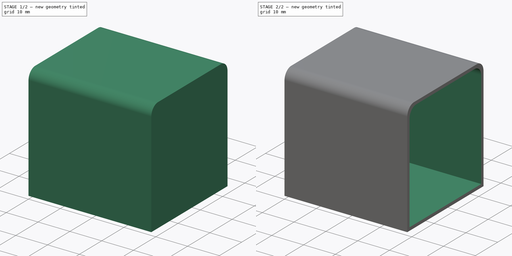
[diagram: build sequence overview — one tinted view per stage of 2, left to right]
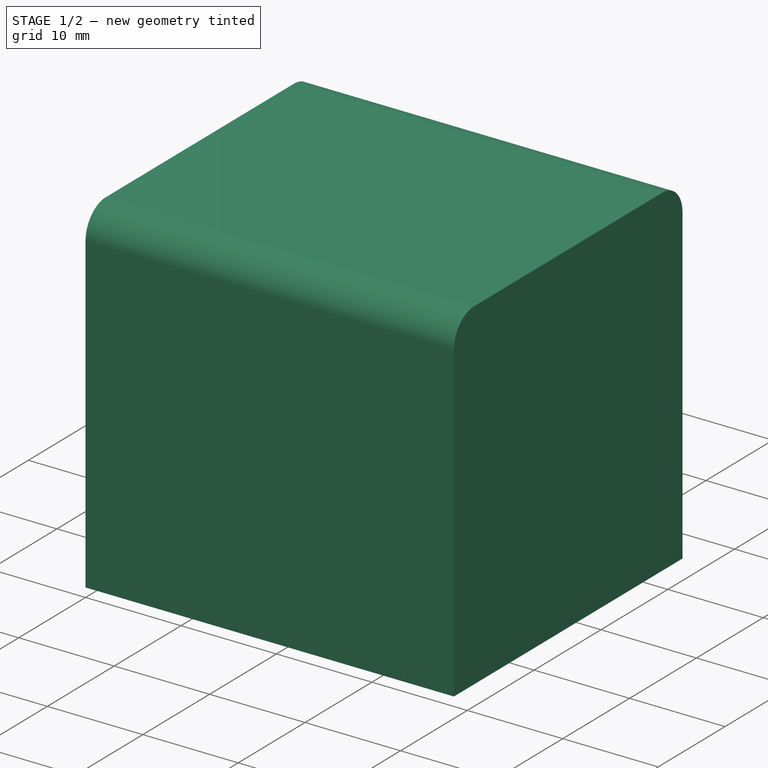
[diagram: stage 1 of 2 — iso view after this stage's code; geometry added in this stage tinted green]
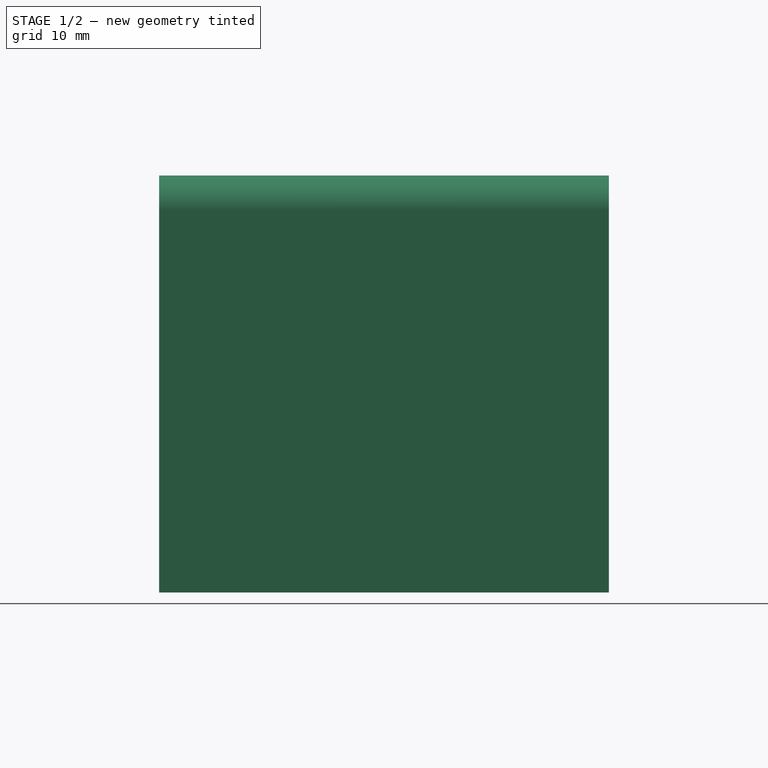
[diagram: stage 1 of 2 — front view after this stage's code; geometry added in this stage tinted green]
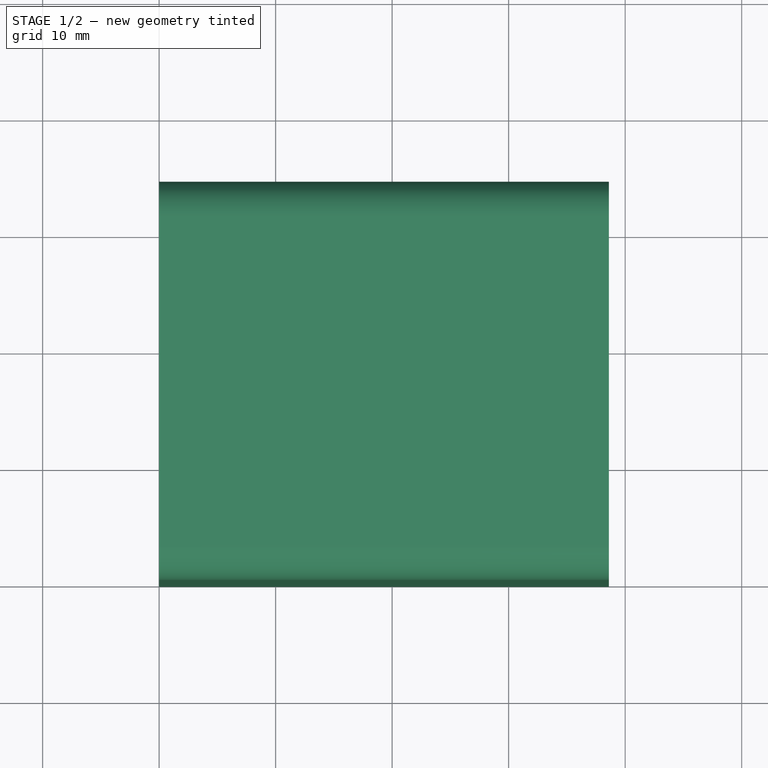
[diagram: stage 1 of 2 — top view after this stage's code; geometry added in this stage tinted green]
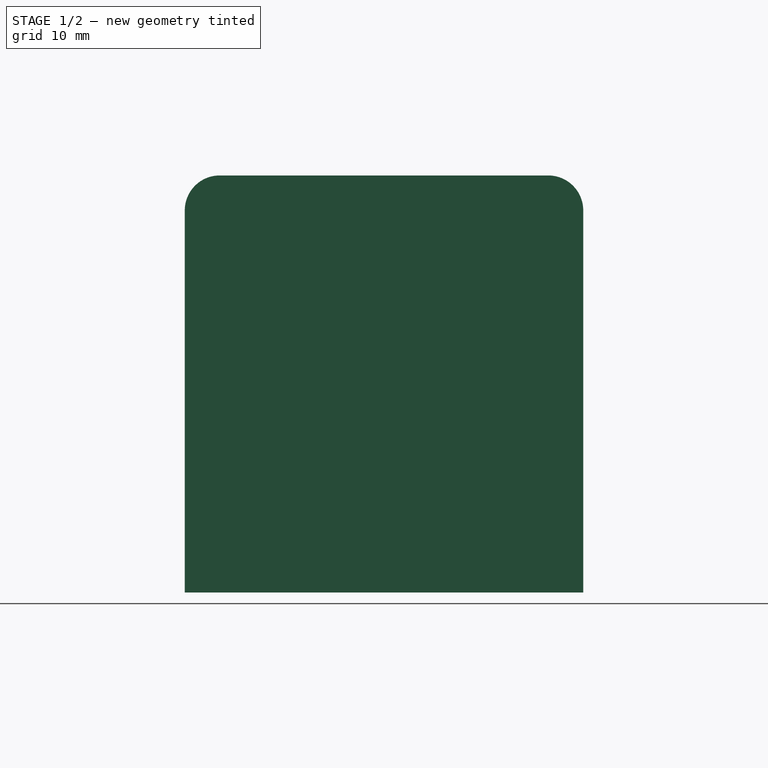
[diagram: stage 1 of 2 — right view after this stage's code; geometry added in this stage tinted green]
FCSTD DOCUMENT  (FreeCAD 0.19R24291 (Git))
Label: NewCase (copy)
License: All rights reserved
LicenseURL: http://en.wikipedia.org/wiki/All_rights_reserved
objects: Sketcher::SketchObject×4, PartDesign::Pocket×3, PartDesign::Pad×1, PartDesign::Body×1
note: 13 computed .brp shape members not serialized (recipe doc carries the construction recipe); baked Part::Feature solids carry a one-line shape summary decoded from their .brp

FEATURE [Sketcher::SketchObject] Sketch
  FullyConstrained = false
  MapMode = 5
  Placement = pos=(0,0,0) rot=(0.57735,0.57735,0.57735;2.0944rad)
  Support = -> [YZ_Plane]
  sketch-geometry (7):
    g0: LineSegment StartX=0 StartY=0 StartZ=0 EndX=34.2 EndY=0 EndZ=0
    g1: LineSegment StartX=34.2 StartY=0 StartZ=0 EndX=34.2 EndY=32.8 EndZ=0
    g2: LineSegment StartX=31.2 StartY=35.8 StartZ=0 EndX=3 EndY=35.8 EndZ=0
    g3: LineSegment StartX=0 StartY=32.8 StartZ=0 EndX=0 EndY=0 EndZ=0
    g4: GeomPoint X=28.1469 Y=35.8 Z=0
    g5: ArcOfCircle CenterX=31.2 CenterY=32.8 CenterZ=0 NormalX=0 NormalY=0 NormalZ=1 AngleXU=0 Radius=3 StartAngle=6e-16 EndAngle=1.5708
    g6: ArcOfCircle CenterX=3 CenterY=32.8 CenterZ=0 NormalX=0 NormalY=0 NormalZ=1 AngleXU=0 Radius=3 StartAngle=1.5708 EndAngle=3.14159
  constraints (16):
    c: Coincident(g0,g-1)
    c: PointOnObject(g0,g-1)
    c: Coincident(g1,g0)
    c: Vertical(g1)
    c: Horizontal(g2)
    c: Coincident(g3,g0)
    c: DistanceX(g0,g0) = 34.2
    c: PointOnObject(g4,g2)
    c: DistanceY(g0,g4) = 35.8
    c: Tangent(g1,g5) = -1.5708
    c: Tangent(g2,g5) = -1.5708
    c: Tangent(g3,g6) = -1.5708
    c: Tangent(g2,g6) = -1.5708
    c: DistanceX(g3,g6) = 3
    c: Vertical(g3)
    c: DistanceY(g5,g2) = 3
FEATURE [PartDesign::Pad] Pad
  Direction = (1,1,1)
  Length = 38.6
  Length2 = 100
  Placement = pos=(0,0,0) rot=(0.57735,0.57735,0.57735;2.0944rad)
  Profile = -> Sketch
  Type = 0
FEATURE [Sketcher::SketchObject] Sketch001
  FullyConstrained = false
  MapMode = 5
  Placement = pos=(-7.7e-15,0,0) rot=(0.57735,0.57735,-0.57735;4.18879rad)
  Support = -> [Pad]
  sketch-geometry (12):
    g0: LineSegment StartX=4 StartY=-3 StartZ=0 EndX=4 EndY=-1 EndZ=0
    g1: LineSegment StartX=4 StartY=-1 StartZ=0 EndX=29 EndY=-1 EndZ=0
    g2: LineSegment StartX=29 StartY=-3 StartZ=0 EndX=29 EndY=-1 EndZ=0
    g3: LineSegment StartX=1 StartY=-5.5 StartZ=0 EndX=1 EndY=-3 EndZ=0
    g4: LineSegment StartX=32.2 StartY=-3 StartZ=0 EndX=32.2 EndY=-5.5 EndZ=0
    g5: LineSegment StartX=4 StartY=-7.5 StartZ=0 EndX=4 EndY=-5.5 EndZ=0
    g6: LineSegment StartX=29 StartY=-7.5 StartZ=0 EndX=29 EndY=-5.5 EndZ=0
    g7: LineSegment StartX=4 StartY=-5.5 StartZ=0 EndX=1 EndY=-5.5 EndZ=0
    g8: LineSegment StartX=29 StartY=-5.5 StartZ=0 EndX=32.2 EndY=-5.5 EndZ=0
    g9: LineSegment StartX=32.2 StartY=-3 StartZ=0 EndX=29 EndY=-3 EndZ=0
    g10: LineSegment StartX=4 StartY=-3 StartZ=0 EndX=1 EndY=-3 EndZ=0
    g11: LineSegment StartX=4 StartY=-7.5 StartZ=0 EndX=29 EndY=-7.5 EndZ=0
  constraints (35):
    c: Coincident(g1,g0)
    c: Horizontal(g1)
    c: Coincident(g2,g1)
    c: Vertical(g0)
    c: Vertical(g2)
    c: DistanceY(g0,g0) = 2
    c: DistanceX(g0,g2) = 25
    c: DistanceY(g0,g-1) = 1
    c: DistanceX(g-1,g0) = 4
    c: Vertical(g3)
    c: Vertical(g4)
    c: DistanceY(g3,g3) = 2.5
    c: DistanceX(g3,g4) = 31.2
    c: DistanceX(g-1,g3) = 1
    c: DistanceY(g3,g0) = 0
    c: Vertical(g5)
    c: Vertical(g6)
    c: DistanceY(g5,g5) = 2
    c: DistanceX(g6,g2) = 0
    c: DistanceY(g6,g4) = 0
    c: Coincident(g7,g5)
    c: Coincident(g7,g3)
    c: Horizontal(g7)
    c: Coincident(g8,g6)
    c: Coincident(g8,g4)
    c: Coincident(g9,g4)
    c: Coincident(g9,g2)
    c: Horizontal(g9)
    c: Coincident(g10,g0)
    c: Coincident(g10,g3)
    c: Coincident(g11,g5)
    c: Coincident(g11,g6)
    c: Horizontal(g11)
    c: DistanceY(g4,g4) = 2.5
    c: DistanceY(g2,g1) = 2
FEATURE [PartDesign::Pocket] Pocket
  BaseFeature = -> Pad
  Length = 16
  Length2 = 100
  Placement = pos=(0,0,0) rot=(0.57735,0.57735,0.57735;2.0944rad)
  Profile = -> Sketch001
  Type = 0
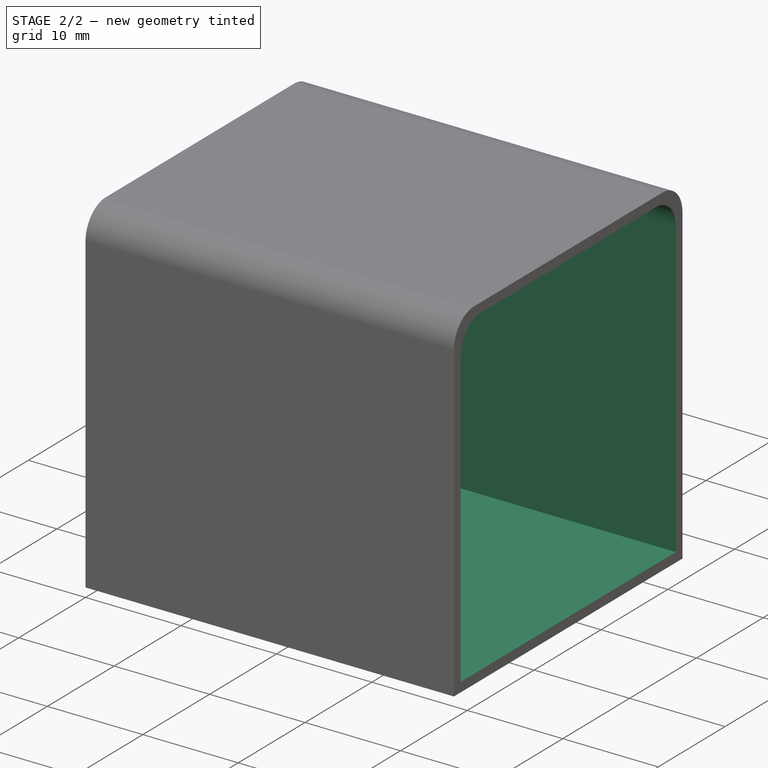
[diagram: stage 2 of 2 — iso view after this stage's code; geometry added in this stage tinted green]
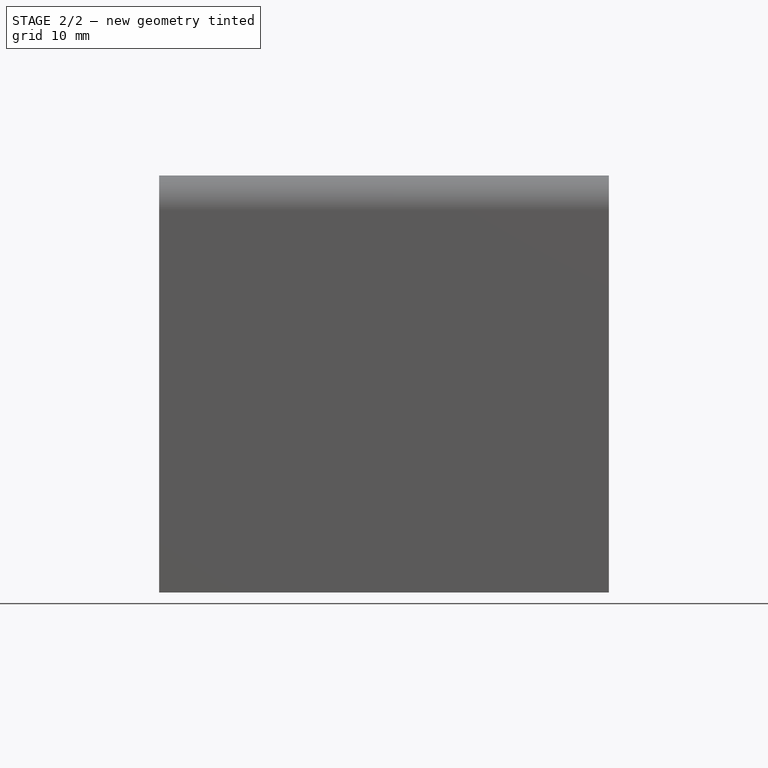
[diagram: stage 2 of 2 — front view after this stage's code; geometry added in this stage tinted green]
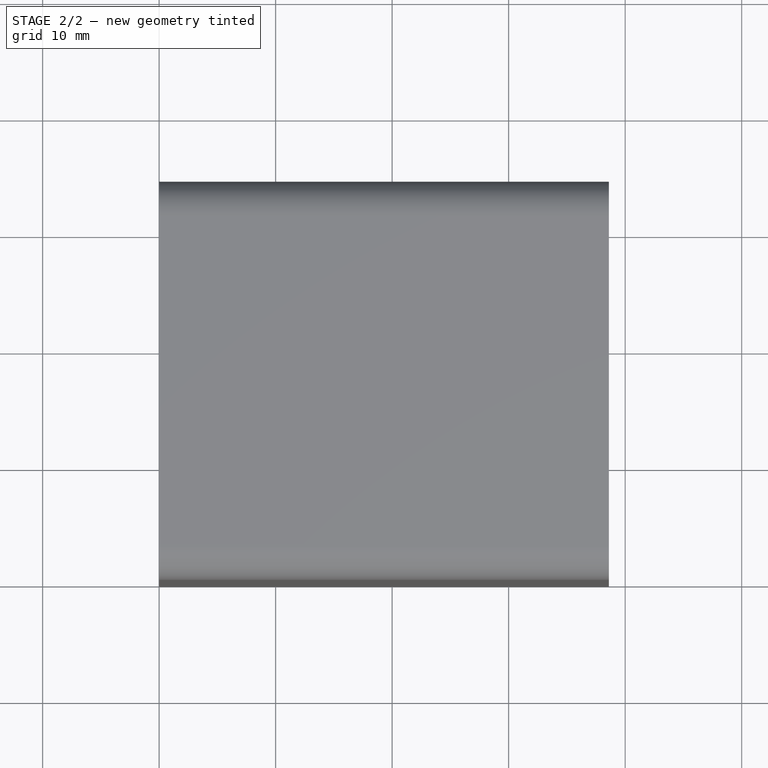
[diagram: stage 2 of 2 — top view after this stage's code; geometry added in this stage tinted green]
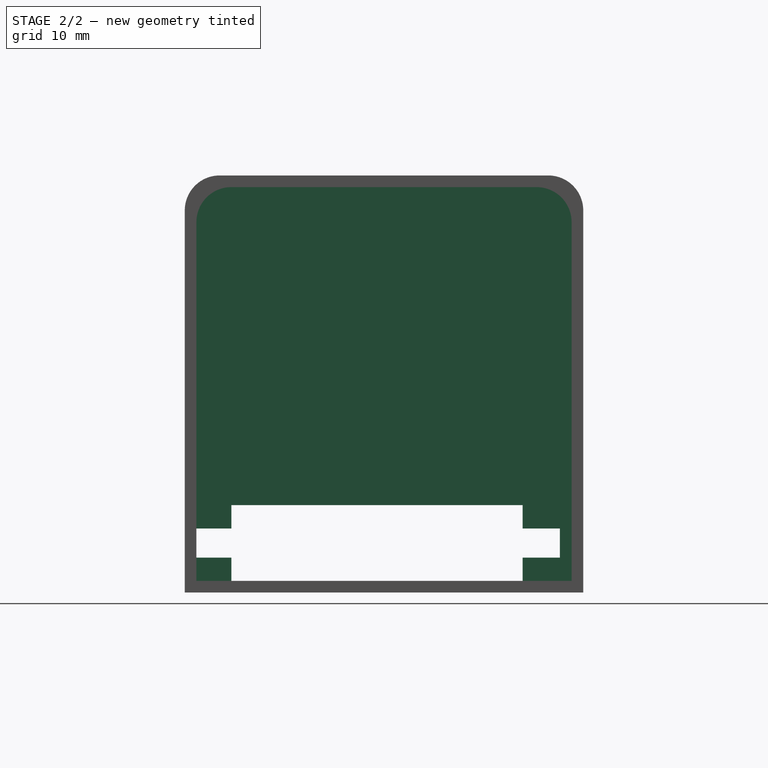
[diagram: stage 2 of 2 — right view after this stage's code; geometry added in this stage tinted green]
FEATURE [Sketcher::SketchObject] Sketch002
  FullyConstrained = false
  MapMode = 5
  Placement = pos=(38.6,-2.57e-14,1.71e-14) rot=(0.57735,0.57735,0.57735;2.0944rad)
  Support = -> [Pocket]
  sketch-geometry (7):
    g0: LineSegment StartX=1 StartY=1 StartZ=0 EndX=33.2 EndY=1 EndZ=0
    g1: LineSegment StartX=33.2 StartY=1 StartZ=0 EndX=33.2 EndY=31.8 EndZ=0
    g2: LineSegment StartX=30.2 StartY=34.8 StartZ=0 EndX=4 EndY=34.8 EndZ=0
    g3: LineSegment StartX=1 StartY=31.8 StartZ=0 EndX=1 EndY=1 EndZ=0
    g4: GeomPoint X=20.4919 Y=34.8 Z=0
    g5: ArcOfCircle CenterX=30.2 CenterY=31.8 CenterZ=0 NormalX=0 NormalY=0 NormalZ=1 AngleXU=0 Radius=3 StartAngle=0 EndAngle=1.5708
    g6: ArcOfCircle CenterX=4 CenterY=31.8 CenterZ=0 NormalX=0 NormalY=0 NormalZ=1 AngleXU=0 Radius=3 StartAngle=1.5708 EndAngle=3.14159
  constraints (17):
    c: Horizontal(g0)
    c: Coincident(g1,g0)
    c: Vertical(g1)
    c: Horizontal(g2)
    c: Coincident(g3,g0)
    c: Vertical(g3)
    c: DistanceX(g-1,g0) = 1
    c: DistanceY(g-1,g0) = 1
    c: DistanceX(g0,g0) = 32.2
    c: PointOnObject(g4,g2)
    c: DistanceY(g0,g4) = 33.8
    c: Tangent(g1,g5) = -1.5708
    c: Tangent(g2,g5) = -1.5708
    c: Tangent(g3,g6) = -1.5708
    c: Tangent(g2,g6) = -1.5708
    c: DistanceY(g6,g2) = 3
    c: DistanceX(g5,g1) = 3
FEATURE [PartDesign::Pocket] Pocket001
  BaseFeature = -> Pocket
  Length = 23
  Length2 = 100
  Placement = pos=(0,0,0) rot=(0.57735,0.57735,0.57735;2.0944rad)
  Profile = -> Sketch002
  Type = 0
FEATURE [Sketcher::SketchObject] Sketch003
  FullyConstrained = false
  MapMode = 5
  Placement = pos=(15.6,-1.35e-14,9.4e-15) rot=(0.57735,0.57735,0.57735;2.0944rad)
  Support = -> [Pocket001]
  sketch-geometry (6):
    g0: LineSegment StartX=1 StartY=7.5 StartZ=0 EndX=33.2738 EndY=7.5 EndZ=0
    g1: LineSegment StartX=33.2738 StartY=7.5 StartZ=0 EndX=33.2738 EndY=31.8 EndZ=0
    g2: LineSegment StartX=30.2738 StartY=34.8 StartZ=0 EndX=4 EndY=34.8 EndZ=0
    g3: LineSegment StartX=1 StartY=31.8 StartZ=0 EndX=1 EndY=7.5 EndZ=0
    g4: ArcOfCircle CenterX=4 CenterY=31.8 CenterZ=0 NormalX=0 NormalY=0 NormalZ=1 AngleXU=0 Radius=3 StartAngle=1.5708 EndAngle=3.14159
    g5: ArcOfCircle CenterX=30.2738 CenterY=31.8 CenterZ=0 NormalX=0 NormalY=0 NormalZ=1 AngleXU=0 Radius=3 StartAngle=4e-16 EndAngle=1.5708
  constraints (15):
    c: Horizontal(g0)
    c: Vertical(g1)
    c: Horizontal(g2)
    c: Coincident(g3,g0)
    c: Vertical(g3)
    c: Tangent(g3,g4) = -1.5708
    c: Tangent(g2,g4) = -1.5708
    c: Tangent(g1,g5) = -1.5708
    c: Tangent(g2,g5) = -1.5708
    c: DistanceY(g0,g2) = 27.3
    c: DistanceY(g4,g2) = 3
    c: DistanceX(g5,g1) = 3
    c: DistanceX(g-1,g0) = 1
    c: DistanceY(g-1,g0) = 7.5
    c: Coincident(g1,g0)
FEATURE [PartDesign::Pocket] Pocket002
  BaseFeature = -> Pocket001
  Length = 14
  Length2 = 100
  Placement = pos=(0,0,0) rot=(0.57735,0.57735,0.57735;2.0944rad)
  Profile = -> Sketch003
  Type = 0
FEATURE [PartDesign::Body] Body
  Group = -> [Sketch,Pad,Sketch001,Pocket,Sketch002,Pocket001,Sketch003,Pocket002]
  Origin = -> Origin
  Tip = -> Pocket002
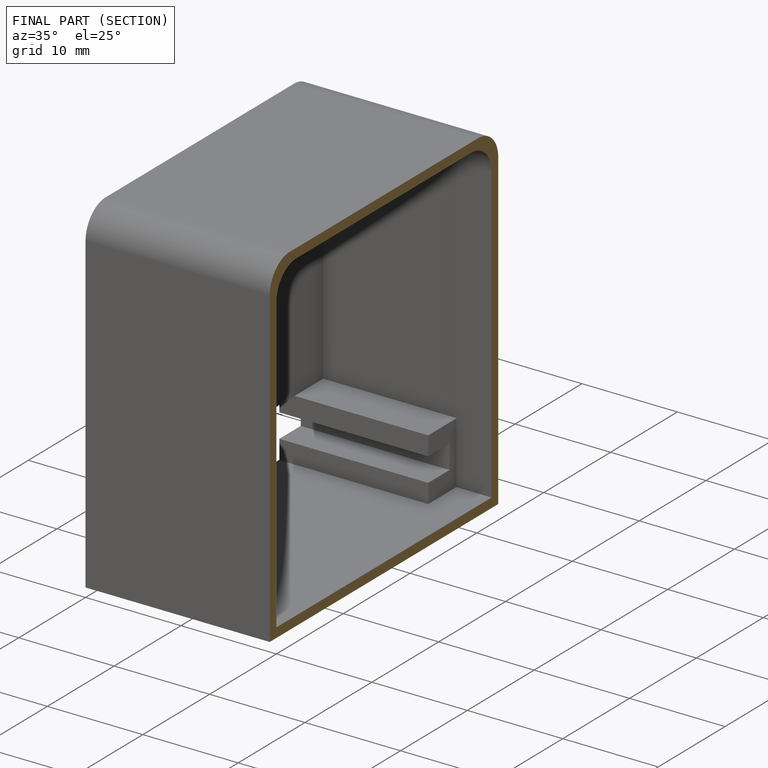
[diagram: finished part — half-section view (interior)]
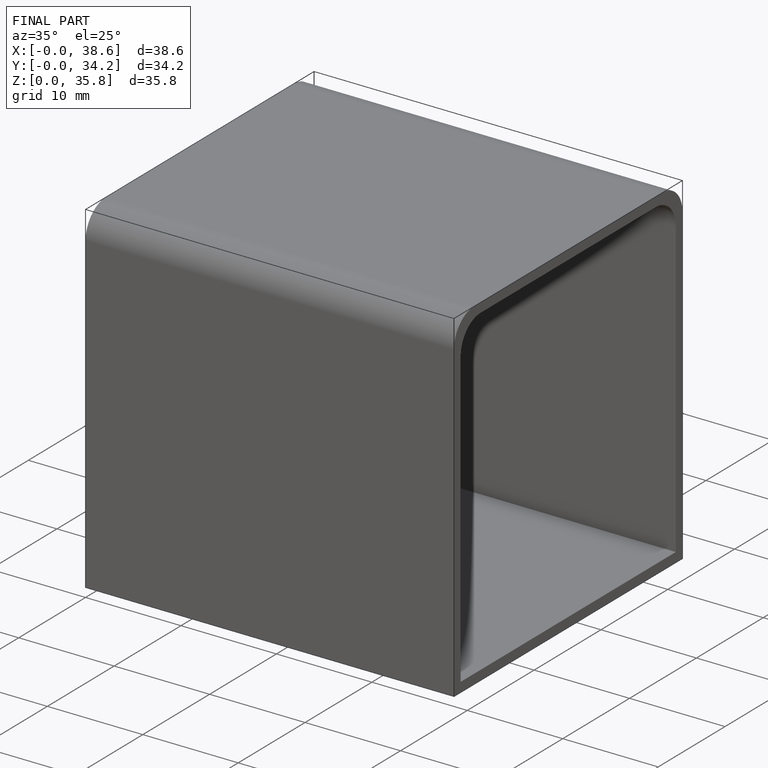
[diagram: finished part — iso view with bounding-box wireframe]
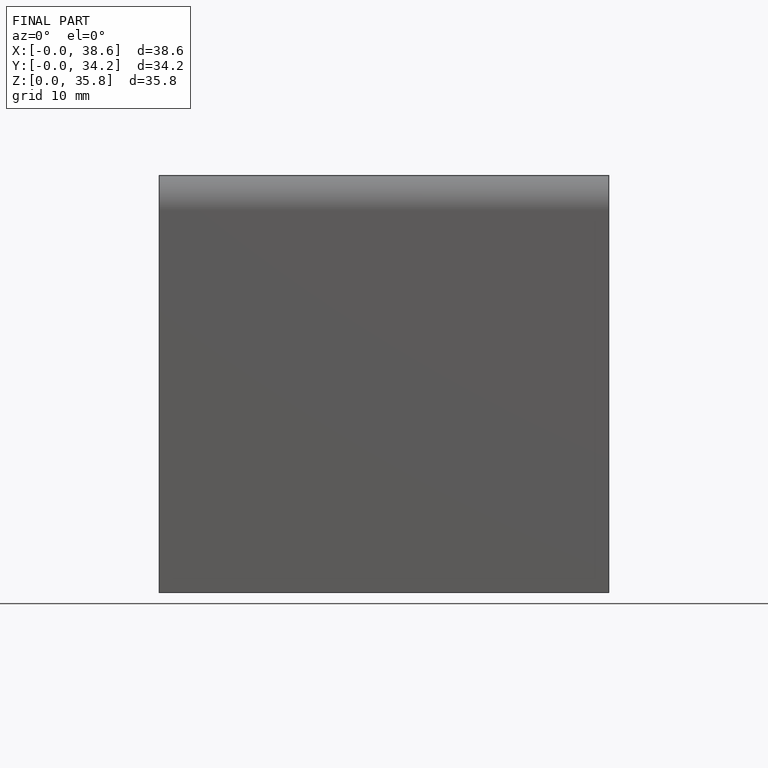
[diagram: finished part — front view with bounding-box wireframe]
